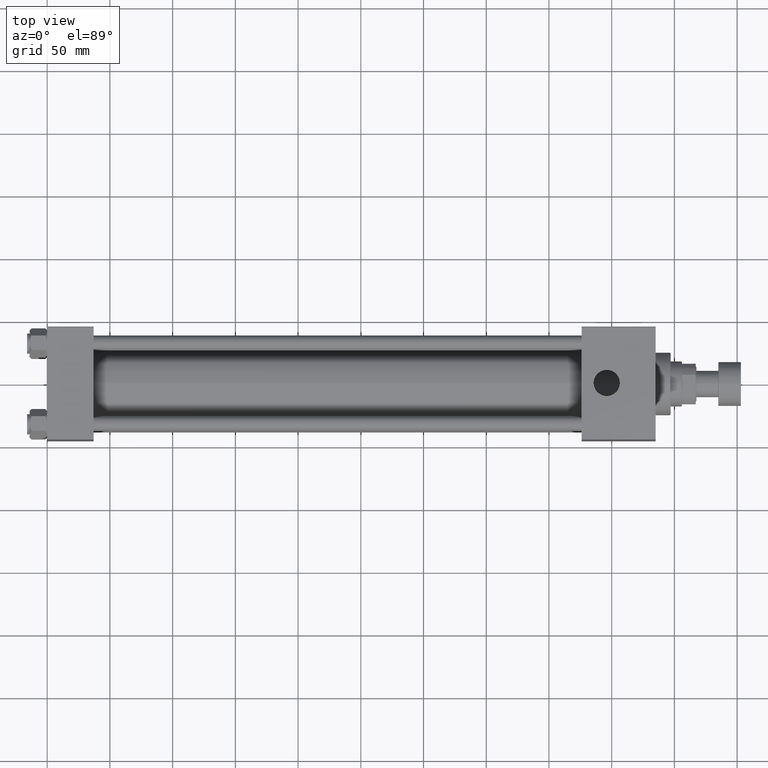
[diagram: clean part render]
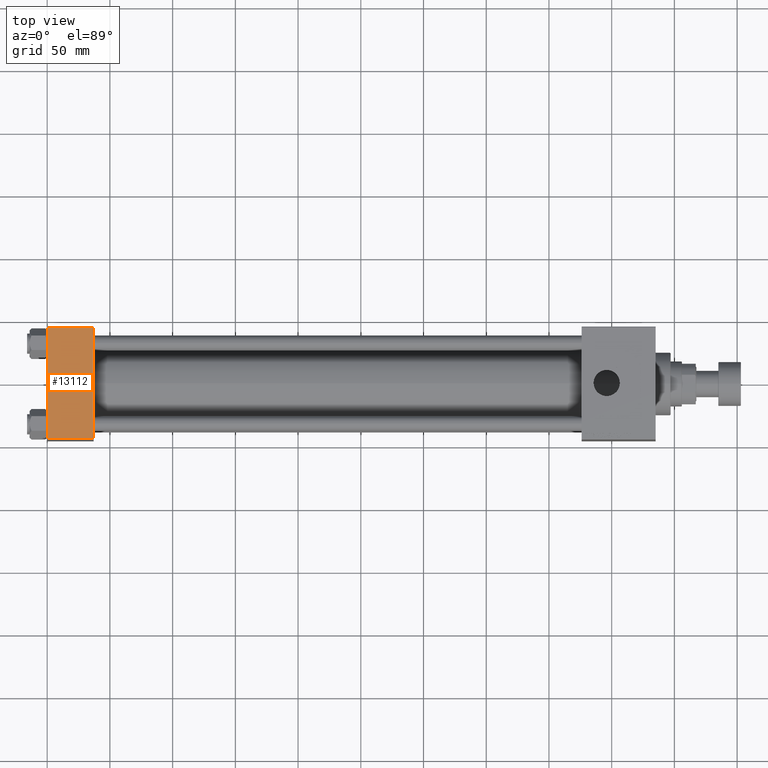
[diagram: same view with one face highlighted and labeled with its STEP entity id]
A machine part, top view. The second image highlights one B-rep face of the part: STEP entity #13112.
In plain terms, the highlighted planar face has unit normal (0, 0, -1).
Its self-contained STEP definition (entity closure, byte-faithful):
#831 = CARTESIAN_POINT ( 'NONE',  ( 0.000000000000000000, -44.49999999999997158, 44.99999999999998579 ) ) ;
#3566 = ORIENTED_EDGE ( 'NONE', *, *, #4636, .T. ) ;
#3937 = ORIENTED_EDGE ( 'NONE', *, *, #27648, .F. ) ;
#4636 = EDGE_CURVE ( 'NONE', #49964, #22693, #34508, .T. ) ;
#5939 = CARTESIAN_POINT ( 'NONE',  ( 37.00000000000000000, -44.49999999999997158, 44.99999999999998579 ) ) ;
#6156 = LINE ( 'NONE', #29951, #10401 ) ;
#7375 = EDGE_LOOP ( 'NONE', ( #3566, #38714, #3937, #29394 ) ) ;
#7652 = VERTEX_POINT ( 'NONE', #7752 ) ;
#7752 = CARTESIAN_POINT ( 'NONE',  ( 37.00000000000000000, 44.49999999999997158, 45.00000000000000711 ) ) ;
#8428 = VECTOR ( 'NONE', #44476, 1000.000000000000000 ) ;
#10401 = VECTOR ( 'NONE', #37646, 1000.000000000000000 ) ;
#11037 = LINE ( 'NONE', #30746, #50656 ) ;
#13112 = ADVANCED_FACE ( 'NONE', ( #27350 ), #16330, .F. ) ;
#16330 = PLANE ( 'NONE',  #47064 ) ;
#19277 = VECTOR ( 'NONE', #27308, 1000.000000000000000 ) ;
#22693 = VERTEX_POINT ( 'NONE', #831 ) ;
#27308 = DIRECTION ( 'NONE',  ( 0.000000000000000000, -1.000000000000000000, -2.312964634635742957E-16 ) ) ;
#27350 = FACE_OUTER_BOUND ( 'NONE', #7375, .T. ) ;
#27608 = DIRECTION ( 'NONE',  ( 0.000000000000000000, 2.312964634635742957E-16, -1.000000000000000000 ) ) ;
#27648 = EDGE_CURVE ( 'NONE', #7652, #34172, #42439, .T. ) ;
#29394 = ORIENTED_EDGE ( 'NONE', *, *, #31257, .T. ) ;
#29951 = CARTESIAN_POINT ( 'NONE',  ( 0.000000000000000000, 44.49999999999997158, 45.00000000000000711 ) ) ;
#30746 = CARTESIAN_POINT ( 'NONE',  ( 37.00000000000000000, -44.50000000000000000, 44.99999999999998579 ) ) ;
#31257 = EDGE_CURVE ( 'NONE', #7652, #49964, #6156, .T. ) ;
#34172 = VERTEX_POINT ( 'NONE', #5939 ) ;
#34508 = LINE ( 'NONE', #50145, #8428 ) ;
#37612 = CARTESIAN_POINT ( 'NONE',  ( 0.000000000000000000, 44.49999999999997158, 45.00000000000000711 ) ) ;
#37646 = DIRECTION ( 'NONE',  ( -1.000000000000000000, 0.000000000000000000, 0.000000000000000000 ) ) ;
#38193 = DIRECTION ( 'NONE',  ( 1.000000000000000000, 0.000000000000000000, 0.000000000000000000 ) ) ;
#38714 = ORIENTED_EDGE ( 'NONE', *, *, #40666, .T. ) ;
#39144 = CARTESIAN_POINT ( 'NONE',  ( 37.00000000000000000, 45.00000000000000000, 45.00000000000000711 ) ) ;
#39390 = DIRECTION ( 'NONE',  ( 0.000000000000000000, 1.000000000000000000, 2.312964634635742957E-16 ) ) ;
#40666 = EDGE_CURVE ( 'NONE', #22693, #34172, #11037, .T. ) ;
#42439 = LINE ( 'NONE', #47059, #19277 ) ;
#44476 = DIRECTION ( 'NONE',  ( 0.000000000000000000, -1.000000000000000000, -2.312964634635742957E-16 ) ) ;
#47059 = CARTESIAN_POINT ( 'NONE',  ( 37.00000000000000000, 45.00000000000000000, 45.00000000000000711 ) ) ;
#47064 = AXIS2_PLACEMENT_3D ( 'NONE', #39144, #27608, #39390 ) ;
#49964 = VERTEX_POINT ( 'NONE', #37612 ) ;
#50145 = CARTESIAN_POINT ( 'NONE',  ( 0.000000000000000000, 45.00000000000000000, 45.00000000000000711 ) ) ;
#50656 = VECTOR ( 'NONE', #38193, 1000.000000000000000 ) ;